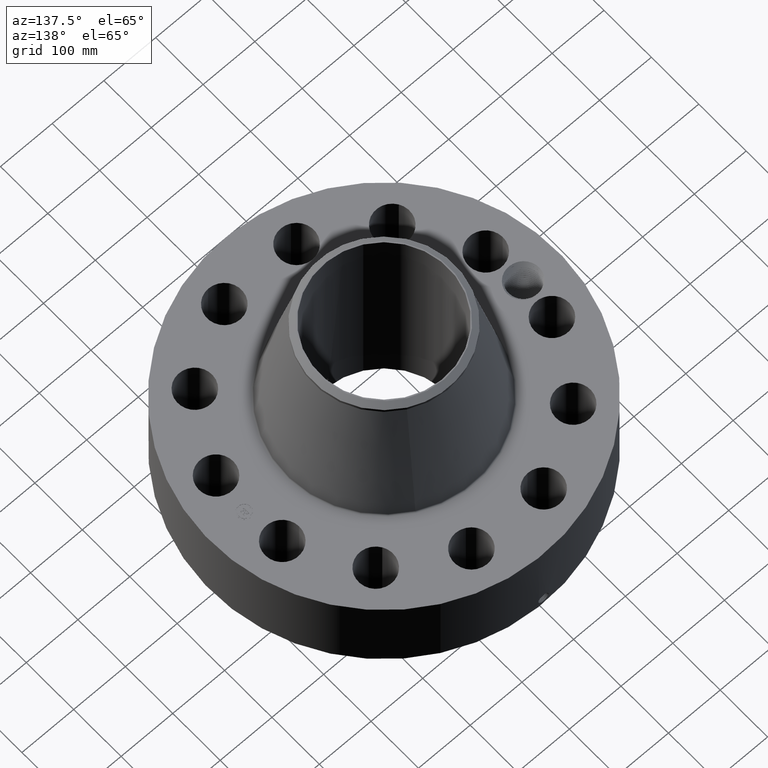
[diagram: clean part render]
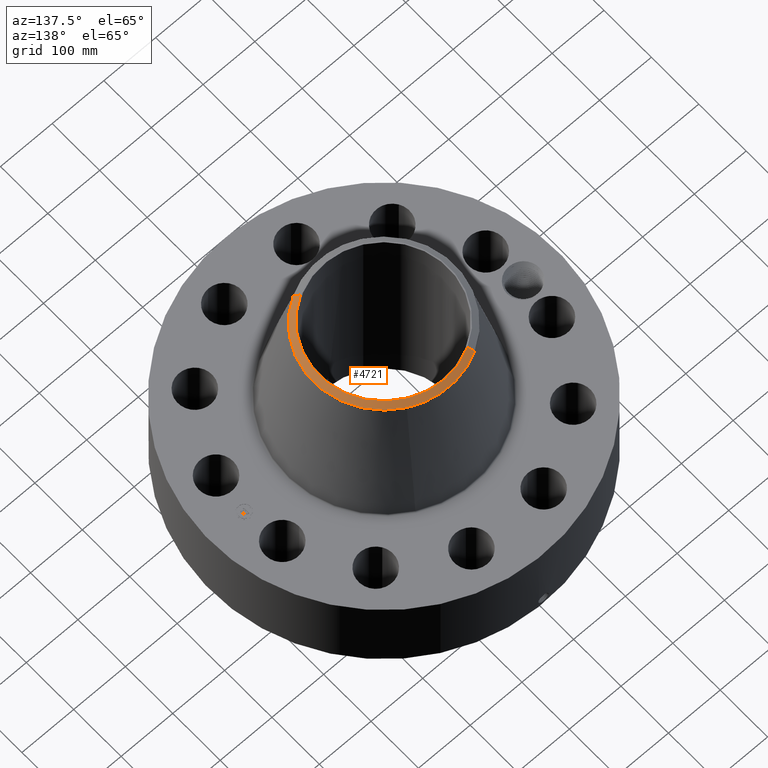
[diagram: same view with one face highlighted and labeled with its STEP entity id]
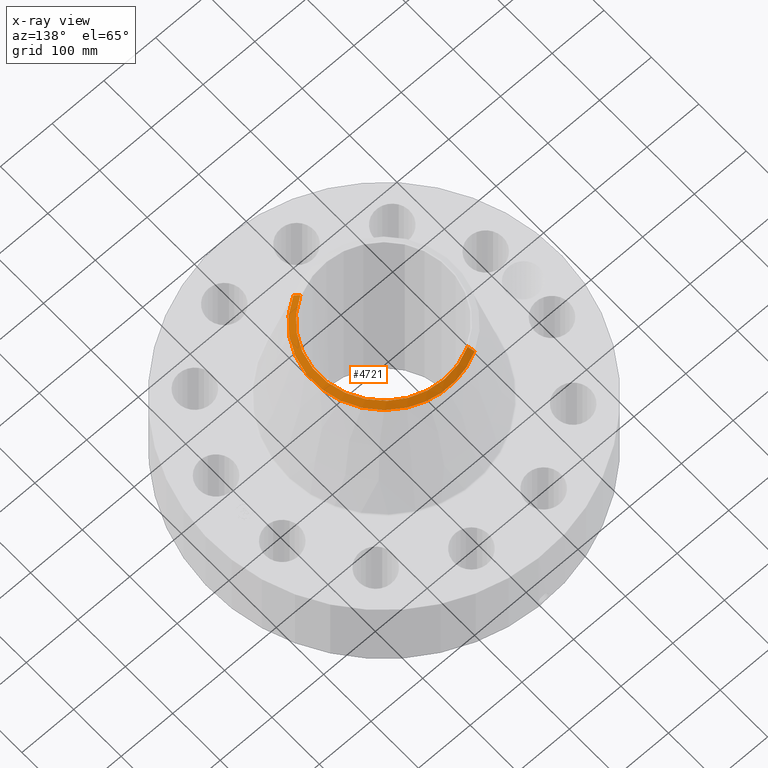
[diagram: x-ray of the same camera — body ghosted, the highlighted face saturated]
A machine part, auxiliary view. The second image highlights one B-rep face of the part: STEP entity #4721.
The next image is the same camera in x-ray: the body ghosted, the highlighted face saturated — about 0% of this face is hidden behind the body in this view.
In plain terms, the highlighted conical surface has half-angle 52.5 deg.
Its self-contained STEP definition (entity closure, byte-faithful):
#3509=AXIS2_PLACEMENT_3D('Circle Axis2P3D',#3507,#3508,$) ;
#3536=AXIS2_PLACEMENT_3D('Circle Axis2P3D',#3534,#3535,$) ;
#4325=AXIS2_PLACEMENT_3D('Circle Axis2P3D',#4323,#4324,$) ;
#4702=AXIS2_PLACEMENT_3D('Cone Axis2P3D',#4699,#4700,#4701) ;
#3504=CARTESIAN_POINT('Vertex',(2.57691227001,4.71700627018,16.4267559539)) ;
#3507=CARTESIAN_POINT('Axis2P3D Location',(0.,0.,16.4267559539)) ;
#3511=CARTESIAN_POINT('Vertex',(2.57691227001,-4.71700627018,16.4267559539)) ;
#3531=CARTESIAN_POINT('Vertex',(-2.57691227001,4.71700627018,16.4267559539)) ;
#3534=CARTESIAN_POINT('Axis2P3D Location',(0.,0.,16.4267559539)) ;
#4323=CARTESIAN_POINT('Axis2P3D Location',(0.,0.,16.7500000001)) ;
#4327=CARTESIAN_POINT('Vertex',(2.37494954311,-4.34731597836,16.7500000001)) ;
#4329=CARTESIAN_POINT('Vertex',(-2.37494954311,4.34731597836,16.7500000001)) ;
#4699=CARTESIAN_POINT('Axis2P3D Location',(0.,0.,16.7500000001)) ;
#4704=CARTESIAN_POINT('Line Origine',(-2.47593090656,4.53216112427,16.588377977)) ;
#4709=CARTESIAN_POINT('Line Origine',(2.47593090656,-4.53216112427,16.588377977)) ;
#3508=DIRECTION('Axis2P3D Direction',(0.,0.,-0.0393700787402)) ;
#3535=DIRECTION('Axis2P3D Direction',(0.,0.,-0.0393700787402)) ;
#4324=DIRECTION('Axis2P3D Direction',(0.,0.,-0.0393700787402)) ;
#4700=DIRECTION('Axis2P3D Direction',(-0.,-0.,-0.0393700787402)) ;
#4701=DIRECTION('Axis2P3D XDirection',(0.0188750212049,-0.0345504945626,0.)) ;
#4705=DIRECTION('Vector Direction',(-0.014974561121,0.02741075027,-0.023966985394)) ;
#4710=DIRECTION('Vector Direction',(0.014974561121,-0.02741075027,-0.023966985394)) ;
#4706=VECTOR('Line Direction',#4705,0.0393700787402) ;
#4711=VECTOR('Line Direction',#4710,0.0393700787402) ;
#4715=ORIENTED_EDGE('',*,*,#4708,.F.) ;
#4716=ORIENTED_EDGE('',*,*,#4331,.F.) ;
#4717=ORIENTED_EDGE('',*,*,#4713,.T.) ;
#4718=ORIENTED_EDGE('',*,*,#3513,.T.) ;
#4719=ORIENTED_EDGE('',*,*,#3538,.F.) ;
#4721=ADVANCED_FACE('PartBody',(#4720),#4703,.T.) ;
#3510=CIRCLE('generated circle',#3509,5.37500000002) ;
#3537=CIRCLE('generated circle',#3536,5.37500000002) ;
#4326=CIRCLE('generated circle',#4325,4.9537401575) ;
#4703=CONICAL_SURFACE('Cone',#4702,4.9537401575,0.916297857297) ;
#3513=EDGE_CURVE('',#3512,#3505,#3510,.F.) ;
#3538=EDGE_CURVE('',#3532,#3505,#3537,.T.) ;
#4331=EDGE_CURVE('',#4328,#4330,#4326,.F.) ;
#4708=EDGE_CURVE('',#4330,#3532,#4707,.T.) ;
#4713=EDGE_CURVE('',#4328,#3512,#4712,.T.) ;
#4714=EDGE_LOOP('',(#4715,#4716,#4717,#4718,#4719)) ;
#4720=FACE_OUTER_BOUND('',#4714,.T.) ;
#4707=LINE('Line',#4704,#4706) ;
#4712=LINE('Line',#4709,#4711) ;
#3505=VERTEX_POINT('',#3504) ;
#3512=VERTEX_POINT('',#3511) ;
#3532=VERTEX_POINT('',#3531) ;
#4328=VERTEX_POINT('',#4327) ;
#4330=VERTEX_POINT('',#4329) ;